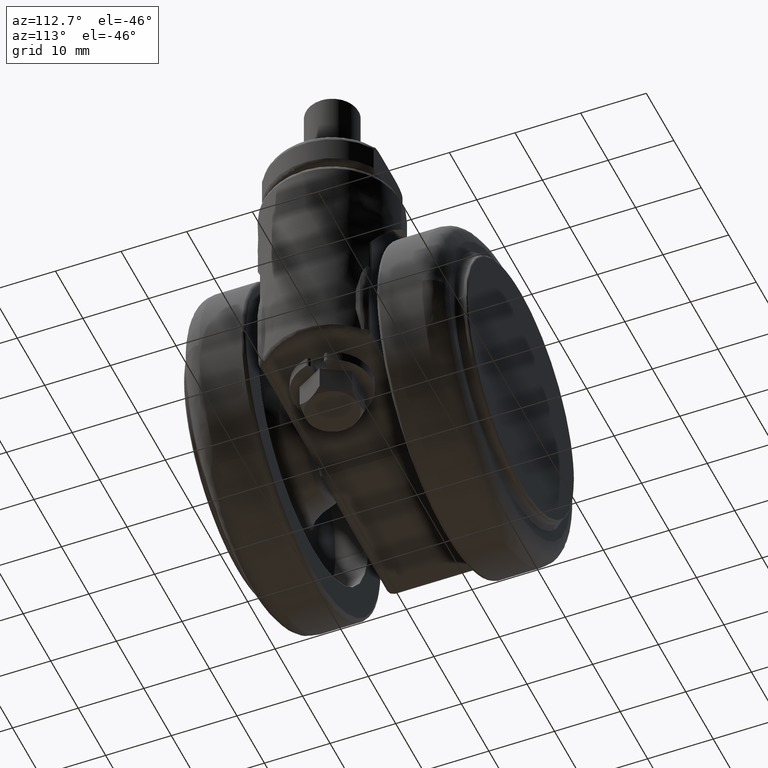
[diagram: clean part render]
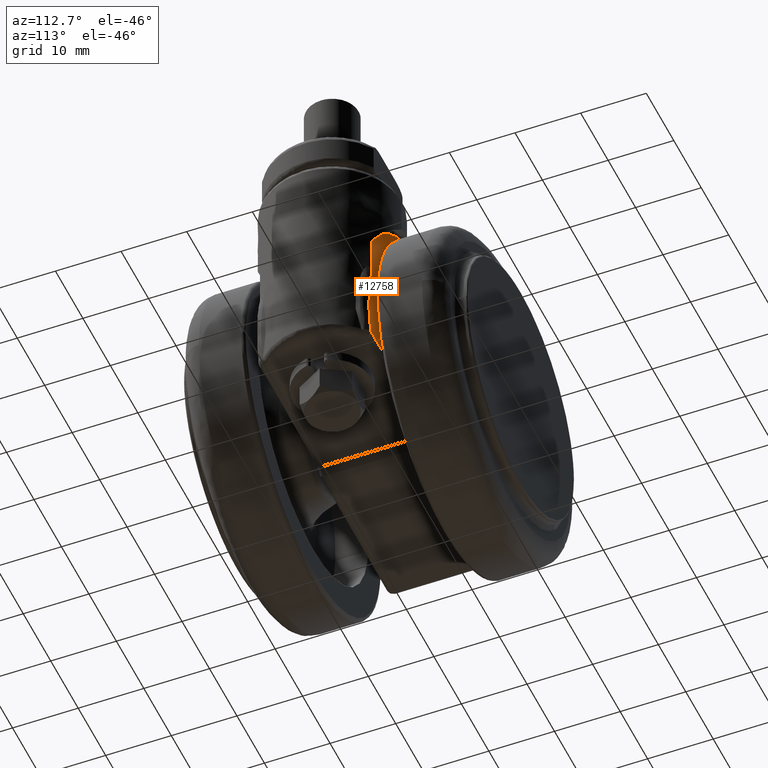
[diagram: same view with one face highlighted and labeled with its STEP entity id]
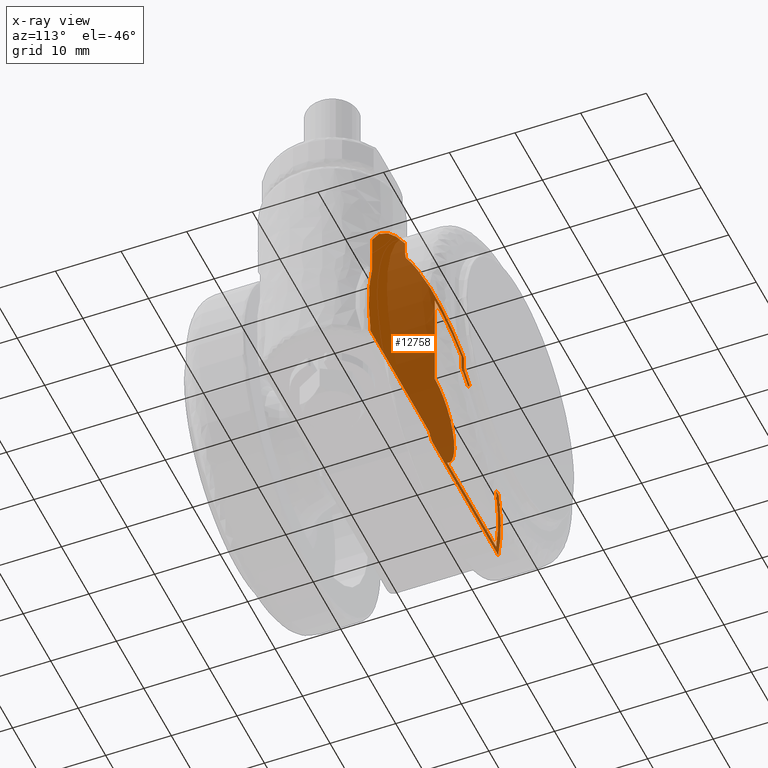
[diagram: x-ray of the same camera — body ghosted, the highlighted face saturated]
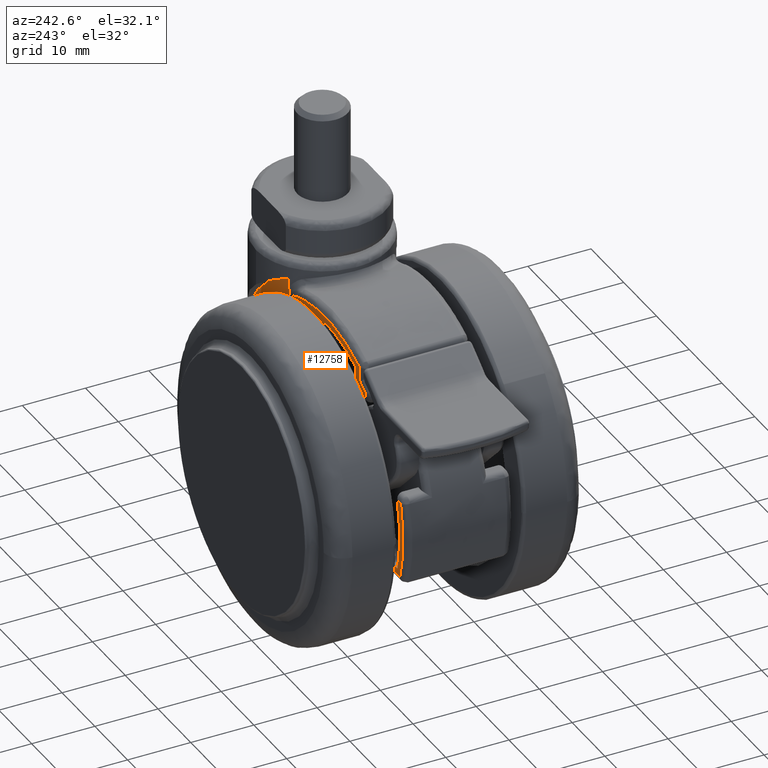
[diagram: same view with one face highlighted and labeled with its STEP entity id]
A machine part, auxiliary view. The second image highlights one B-rep face of the part: STEP entity #12758.
The next image is the same camera in x-ray: the body ghosted, the highlighted face saturated — about 77% of this face is hidden behind the body in this view.
A second angle (auxiliary view) of the same face is appended — the face is thin or edge-on in the first view.
In plain terms, the highlighted face is a freeform B-spline surface patch.
Its self-contained STEP definition (entity closure, byte-faithful):
#9864=CARTESIAN_POINT('',(10.835585997030799,8.500000000000000,24.183466999190799));
#9865=VERTEX_POINT('',#9864);
#9889=CARTESIAN_POINT('',(10.835585997031000,8.500000000000000,22.640273696058799));
#9890=VERTEX_POINT('',#9889);
#9891=CARTESIAN_POINT('',(10.835585997030799,8.500000000000000,24.183466999190799));
#9892=CARTESIAN_POINT('',(10.835585997031000,8.500000000000000,22.640273696058799));
#9893=QUASI_UNIFORM_CURVE('',1,(#9891,#9892),.UNSPECIFIED.,.F.,.U.);
#9894=EDGE_CURVE('',#9865,#9890,#9893,.T.);
#10335=CARTESIAN_POINT('',(22.830951894845299,8.500000000000000,7.399164518731801));
#10336=VERTEX_POINT('',#10335);
#10350=CARTESIAN_POINT('',(22.830951894845299,8.500000000000000,13.453536173633299));
#10351=VERTEX_POINT('',#10350);
#10352=CARTESIAN_POINT('',(22.830951894845299,8.500000000000000,13.453536173633299));
#10353=CARTESIAN_POINT('',(22.830951894845299,8.500000000000000,7.399164518731801));
#10354=QUASI_UNIFORM_CURVE('',1,(#10352,#10353),.UNSPECIFIED.,.F.,.U.);
#10355=EDGE_CURVE('',#10351,#10336,#10354,.T.);
#10389=CARTESIAN_POINT('',(-12.134737724335920,8.499999999999831,17.145157659645950));
#10390=VERTEX_POINT('',#10389);
#10426=CARTESIAN_POINT('',(-12.751275796193640,8.500000000000000,17.933771914017800));
#10427=VERTEX_POINT('',#10426);
#10440=CARTESIAN_POINT('',(-12.134737724335920,8.499999999999831,17.145157659645950));
#10441=CARTESIAN_POINT('',(-12.751275796193640,8.500000000000000,17.933771914017800));
#10442=QUASI_UNIFORM_CURVE('',1,(#10440,#10441),.UNSPECIFIED.,.F.,.U.);
#10443=EDGE_CURVE('',#10390,#10427,#10442,.T.);
#10735=CARTESIAN_POINT('',(-22.259335735551151,8.499999999999840,5.789816284824220));
#10736=VERTEX_POINT('',#10735);
#10768=CARTESIAN_POINT('',(-23.291157708194401,8.500000000000000,5.789816284824220));
#10769=VERTEX_POINT('',#10768);
#10770=CARTESIAN_POINT('',(-23.291157708194401,8.500000000000000,5.789816284824220));
#10771=CARTESIAN_POINT('',(-22.259335735551151,8.499999999999840,5.789816284824220));
#10772=QUASI_UNIFORM_CURVE('',1,(#10770,#10771),.UNSPECIFIED.,.F.,.U.);
#10773=EDGE_CURVE('',#10769,#10736,#10772,.T.);
#11324=CARTESIAN_POINT('',(10.519259301592101,8.500000000000000,21.571860924497649));
#11325=VERTEX_POINT('',#11324);
#11326=CARTESIAN_POINT('',(10.519259301592101,8.500000000000000,21.571860924497649));
#11327=CARTESIAN_POINT('',(10.526676076427140,8.500000000000000,21.580945536070129));
#11328=CARTESIAN_POINT('',(10.534228568331301,8.500000000000000,21.590400479527460));
#11329=CARTESIAN_POINT('',(10.548736710344169,8.500000000000000,21.609417072790979));
#11330=CARTESIAN_POINT('',(10.555801242226281,8.500000000000000,21.619032015800268));
#11331=CARTESIAN_POINT('',(10.576463655569469,8.500000000000002,21.648175720686279));
#11332=CARTESIAN_POINT('',(10.589531860306019,8.499999999999998,21.668002511289970));
#11333=CARTESIAN_POINT('',(10.626847344307871,8.500000000000000,21.728545824032430));
#11334=CARTESIAN_POINT('',(10.649217735745330,8.499999999999998,21.770318398786099));
#11335=CARTESIAN_POINT('',(10.689723438152360,8.499999999999998,21.856246465234982));
#11336=CARTESIAN_POINT('',(10.707928924108231,8.499999999999998,21.900636460711421));
#11337=CARTESIAN_POINT('',(10.740111076203689,8.500000000000000,21.990312869728200));
#11338=CARTESIAN_POINT('',(10.754086789711220,8.500000000000000,22.035513292402221));
#11339=CARTESIAN_POINT('',(10.790582250077589,8.500000000000000,22.172044638926231));
#11340=CARTESIAN_POINT('',(10.807722496924050,8.500000000000002,22.264296706357769));
#11341=CARTESIAN_POINT('',(10.830241689083870,8.499999999999998,22.450814754668681));
#11342=CARTESIAN_POINT('',(10.835585997031041,8.500000000000002,22.545086666580222));
#11343=CARTESIAN_POINT('',(10.835585997031041,8.500000000000000,22.640273696058799));
#11344=B_SPLINE_CURVE_WITH_KNOTS('',3,(#11326,#11327,#11328,#11329,#11330,#11331,#11332,#11333,#11334,#11335,#11336,#11337,#11338,#11339,#11340,#11341,#11342,#11343),.UNSPECIFIED.,.F.,.U.,(4,2,2,2,2,2,2,2,4),(0.0,0.031250000000005,0.062500000000010,0.125000000000013,0.250000000000011,0.375000000000009,0.500000000000006,0.750000000000003,1.0),.UNSPECIFIED.);
#11345=EDGE_CURVE('',#11325,#9890,#11344,.T.);
#11414=CARTESIAN_POINT('',(-10.690277602686541,8.500000000000000,21.487623525590251));
#11415=VERTEX_POINT('',#11414);
#11416=CARTESIAN_POINT('',(-10.690277602686530,8.500000000000000,21.487623525590230));
#11417=CARTESIAN_POINT('',(-0.106255290958149,8.500000000000000,26.753265700056645));
#11418=CARTESIAN_POINT('',(10.519259301592079,8.500000000000000,21.571860924497649));
#11426=(BOUNDED_CURVE()B_SPLINE_CURVE(2,(#11416,#11417,#11418),.UNSPECIFIED.,.F.,.U.)CURVE()GEOMETRIC_REPRESENTATION_ITEM()QUASI_UNIFORM_CURVE()RATIONAL_B_SPLINE_CURVE((1.0,0.897079667986461,1.0))REPRESENTATION_ITEM(''));
#11427=EDGE_CURVE('',#11415,#11325,#11426,.T.);
#11691=CARTESIAN_POINT('',(4.353505E-016,8.499999999999840,7.110047620127490));
#11692=VERTEX_POINT('',#11691);
#11693=CARTESIAN_POINT('',(0.0,8.499999999999831,23.0));
#11694=VERTEX_POINT('',#11693);
#11695=CARTESIAN_POINT('',(4.353505E-016,8.499999999999840,7.110047620127490));
#11696=CARTESIAN_POINT('',(0.0,8.499999999999831,23.0));
#11697=QUASI_UNIFORM_CURVE('',1,(#11695,#11696),.UNSPECIFIED.,.F.,.U.);
#11698=EDGE_CURVE('',#11692,#11694,#11697,.T.);
#11732=CARTESIAN_POINT('',(-4.505860313023500,8.499999999999840,-5.500000000000000));
#11733=VERTEX_POINT('',#11732);
#11734=CARTESIAN_POINT('',(4.353505E-016,8.499999999999840,7.110047620127490));
#11735=CARTESIAN_POINT('',(-0.568256836828598,8.499999999999831,7.110187021965817));
#11736=CARTESIAN_POINT('',(-1.500117969095546,8.499999999999867,6.997696038073711));
#11737=CARTESIAN_POINT('',(-2.843353278566176,8.499999999999822,6.557791755376616));
#11738=CARTESIAN_POINT('',(-3.949699042755978,8.499999999999863,5.962113769506096));
#11739=CARTESIAN_POINT('',(-5.084271567026111,8.499999999999847,5.042925701666264));
#11740=CARTESIAN_POINT('',(-6.024243312639314,8.499999999999803,3.889266176823686));
#11741=CARTESIAN_POINT('',(-6.640956030949153,8.499999999999872,2.638814116618749));
#11742=CARTESIAN_POINT('',(-7.013277502829940,8.500000000000251,1.371019189195270));
#11743=CARTESIAN_POINT('',(-7.147329456038018,8.499999999998973,0.190075622465552));
#11744=CARTESIAN_POINT('',(-7.068414145905487,8.500000000000910,-0.947072556773723));
#11745=CARTESIAN_POINT('',(-6.856778254183662,8.499999999999410,-1.972788735770291));
#11746=CARTESIAN_POINT('',(-6.437478601426298,8.500000000000046,-3.131268002728250));
#11747=CARTESIAN_POINT('',(-5.661694106272191,8.499999999999785,-4.400160854654572));
#11748=CARTESIAN_POINT('',(-4.910321060897844,8.499999999999682,-5.168750633852432));
#11749=CARTESIAN_POINT('',(-4.505860313023500,8.499999999999840,-5.500000000000000));
#11750=B_SPLINE_CURVE_WITH_KNOTS('',3,(#11734,#11735,#11736,#11737,#11738,#11739,#11740,#11741,#11742,#11743,#11744,#11745,#11746,#11747,#11748,#11749),.UNSPECIFIED.,.F.,.U.,(4,1,1,1,1,1,1,1,1,1,1,1,1,4),(0.000000129377010,1.704737102864749,2.795803704120575,4.227827910145154,5.455275622223113,7.160042304442333,8.660260640104804,9.614859348169482,11.115084190869680,12.206141111547341,13.024435596971641,14.251870719924330,15.888450634691999,17.456835162904529),.UNSPECIFIED.);
#11751=EDGE_CURVE('',#11692,#11733,#11750,.T.);
#11768=CARTESIAN_POINT('',(-22.332711434127301,8.499999999999840,-5.500000000000000));
#11769=VERTEX_POINT('',#11768);
#11770=CARTESIAN_POINT('',(-22.332711434127301,8.499999999999840,-5.500000000000000));
#11771=CARTESIAN_POINT('',(-4.505860313023500,8.499999999999840,-5.500000000000000));
#11772=QUASI_UNIFORM_CURVE('',1,(#11770,#11771),.UNSPECIFIED.,.F.,.U.);
#11773=EDGE_CURVE('',#11769,#11733,#11772,.T.);
#11799=CARTESIAN_POINT('',(-22.259335735551151,8.499999999999840,5.789816284824222));
#11800=CARTESIAN_POINT('',(-23.725201653969808,8.499999999999840,0.154196773561331));
#11801=CARTESIAN_POINT('',(-22.332711434127290,8.499999999999840,-5.499999999999996));
#11809=(BOUNDED_CURVE()B_SPLINE_CURVE(2,(#11799,#11800,#11801),.UNSPECIFIED.,.F.,.U.)CURVE()GEOMETRIC_REPRESENTATION_ITEM()QUASI_UNIFORM_CURVE()RATIONAL_B_SPLINE_CURVE((1.0,0.969412803447815,1.0))REPRESENTATION_ITEM(''));
#11810=EDGE_CURVE('',#10736,#11769,#11809,.T.);
#11884=CARTESIAN_POINT('',(-9.686705859990260,8.499999999999831,18.642884486217149));
#11885=VERTEX_POINT('',#11884);
#11886=CARTESIAN_POINT('',(-9.686705859990244,8.499999999999840,18.642884486217131));
#11887=CARTESIAN_POINT('',(-10.962011346025232,8.499999999999840,17.977853758528830));
#11888=CARTESIAN_POINT('',(-12.134737724335910,8.499999999999840,17.145157659645950));
#11896=(BOUNDED_CURVE()B_SPLINE_CURVE(2,(#11886,#11887,#11888),.UNSPECIFIED.,.F.,.U.)CURVE()GEOMETRIC_REPRESENTATION_ITEM()QUASI_UNIFORM_CURVE()RATIONAL_B_SPLINE_CURVE((1.0,0.997662788660386,1.0))REPRESENTATION_ITEM(''));
#11897=EDGE_CURVE('',#11885,#10390,#11896,.T.);
#11913=CARTESIAN_POINT('',(-9.689488193443269,8.499999999999831,20.859382027018999));
#11914=VERTEX_POINT('',#11913);
#11915=CARTESIAN_POINT('',(-9.689488193443269,8.499999999999831,20.859382027018999));
#11916=CARTESIAN_POINT('',(-9.686705859990260,8.499999999999831,18.642884486217149));
#11917=QUASI_UNIFORM_CURVE('',1,(#11915,#11916),.UNSPECIFIED.,.F.,.U.);
#11918=EDGE_CURVE('',#11914,#11885,#11917,.T.);
#11944=CARTESIAN_POINT('',(0.0,8.499999999999840,23.0));
#11945=CARTESIAN_POINT('',(-5.081198552043126,8.499999999999840,23.000000000000007));
#11946=CARTESIAN_POINT('',(-9.689488193443271,8.499999999999840,20.859382027019009));
#11954=(BOUNDED_CURVE()B_SPLINE_CURVE(2,(#11944,#11945,#11946),.UNSPECIFIED.,.F.,.U.)CURVE()GEOMETRIC_REPRESENTATION_ITEM()QUASI_UNIFORM_CURVE()RATIONAL_B_SPLINE_CURVE((1.0,0.976455235366336,1.0))REPRESENTATION_ITEM(''));
#11955=EDGE_CURVE('',#11694,#11914,#11954,.T.);
#12472=CARTESIAN_POINT('',(22.830951894845299,8.500000000000000,13.453536173633310));
#12473=CARTESIAN_POINT('',(18.543147993956090,8.500000000000000,20.730035328375156));
#12474=CARTESIAN_POINT('',(10.835585997030799,8.500000000000000,24.183466999190799));
#12482=(BOUNDED_CURVE()B_SPLINE_CURVE(2,(#12472,#12473,#12474),.UNSPECIFIED.,.F.,.U.)CURVE()GEOMETRIC_REPRESENTATION_ITEM()QUASI_UNIFORM_CURVE()RATIONAL_B_SPLINE_CURVE((1.0,0.952779707509432,1.0))REPRESENTATION_ITEM(''));
#12483=EDGE_CURVE('',#10351,#9865,#12482,.T.);
#12668=CARTESIAN_POINT('',(-26.397538250925411,8.500000000000000,25.716106116329868));
#12669=CARTESIAN_POINT('',(26.397310636720601,8.500000000000000,25.716106116329868));
#12670=CARTESIAN_POINT('',(-26.397538250925411,8.500000000000000,-8.032639940133787));
#12671=CARTESIAN_POINT('',(26.397310636720601,8.500000000000000,-8.032639940133787));
#12672=B_SPLINE_SURFACE_WITH_KNOTS('',1,1,((#12668,#12670),(#12669,#12671)),.UNSPECIFIED.,.F.,.F.,.U.,(2,2),(2,2),(0.0,52.794848887646012),(0.0,33.748746056463652),.UNSPECIFIED.);
#12673=ORIENTED_EDGE('',*,*,#10355,.T.);
#12674=CARTESIAN_POINT('',(23.361292772447349,8.500000000000000,-5.500000000000000));
#12675=VERTEX_POINT('',#12674);
#12676=CARTESIAN_POINT('',(22.830951894845299,8.500000000000000,7.399164518731801));
#12677=CARTESIAN_POINT('',(24.897165414359868,8.500000000000000,1.023630990711071));
#12678=CARTESIAN_POINT('',(23.361292772447339,8.500000000000000,-5.499999999999995));
#12686=(BOUNDED_CURVE()B_SPLINE_CURVE(2,(#12676,#12677,#12678),.UNSPECIFIED.,.F.,.U.)CURVE()GEOMETRIC_REPRESENTATION_ITEM()QUASI_UNIFORM_CURVE()RATIONAL_B_SPLINE_CURVE((1.0,0.963151451001386,1.0))REPRESENTATION_ITEM(''));
#12687=EDGE_CURVE('',#10336,#12675,#12686,.T.);
#12688=ORIENTED_EDGE('',*,*,#12687,.T.);
#12689=CARTESIAN_POINT('',(2.085786437627060,8.500000000000000,-5.500000000000000));
#12690=VERTEX_POINT('',#12689);
#12691=CARTESIAN_POINT('',(23.361292772447349,8.500000000000000,-5.500000000000000));
#12692=CARTESIAN_POINT('',(2.085786437627060,8.500000000000000,-5.500000000000000));
#12693=QUASI_UNIFORM_CURVE('',1,(#12691,#12692),.UNSPECIFIED.,.F.,.U.);
#12694=EDGE_CURVE('',#12675,#12690,#12693,.T.);
#12695=ORIENTED_EDGE('',*,*,#12694,.T.);
#12696=CARTESIAN_POINT('',(1.085786437626944,8.500000000000000,-6.500000000000000));
#12697=VERTEX_POINT('',#12696);
#12698=CARTESIAN_POINT('',(2.085786437627060,8.500000000000000,-5.500000000000000));
#12699=CARTESIAN_POINT('',(1.085786437626944,8.500000000000000,-6.500000000000000));
#12700=QUASI_UNIFORM_CURVE('',1,(#12698,#12699),.UNSPECIFIED.,.F.,.U.);
#12701=EDGE_CURVE('',#12690,#12697,#12700,.T.);
#12702=ORIENTED_EDGE('',*,*,#12701,.T.);
#12703=CARTESIAN_POINT('',(-23.103030104295851,8.500000000000000,-6.500000000000000));
#12704=VERTEX_POINT('',#12703);
#12705=CARTESIAN_POINT('',(1.085786437626944,8.500000000000000,-6.500000000000000));
#12706=CARTESIAN_POINT('',(-23.103030104295851,8.500000000000000,-6.500000000000000));
#12707=QUASI_UNIFORM_CURVE('',1,(#12705,#12706),.UNSPECIFIED.,.F.,.U.);
#12708=EDGE_CURVE('',#12697,#12704,#12707,.T.);
#12709=ORIENTED_EDGE('',*,*,#12708,.T.);
#12710=CARTESIAN_POINT('',(-23.103030104295840,8.500000000000000,-6.500000000000007));
#12711=CARTESIAN_POINT('',(-24.824879534535274,8.500000000000000,-0.380009350479049));
#12712=CARTESIAN_POINT('',(-23.291157708194419,8.500000000000000,5.789816284824232));
#12720=(BOUNDED_CURVE()B_SPLINE_CURVE(2,(#12710,#12711,#12712),.UNSPECIFIED.,.F.,.U.)CURVE()GEOMETRIC_REPRESENTATION_ITEM()QUASI_UNIFORM_CURVE()RATIONAL_B_SPLINE_CURVE((1.0,0.966658814553670,1.0))REPRESENTATION_ITEM(''));
#12721=EDGE_CURVE('',#12704,#10769,#12720,.T.);
#12722=ORIENTED_EDGE('',*,*,#12721,.T.);
#12723=ORIENTED_EDGE('',*,*,#10773,.T.);
#12724=ORIENTED_EDGE('',*,*,#11810,.T.);
#12725=ORIENTED_EDGE('',*,*,#11773,.T.);
#12726=ORIENTED_EDGE('',*,*,#11751,.F.);
#12727=ORIENTED_EDGE('',*,*,#11698,.T.);
#12728=ORIENTED_EDGE('',*,*,#11955,.T.);
#12729=ORIENTED_EDGE('',*,*,#11918,.T.);
#12730=ORIENTED_EDGE('',*,*,#11897,.T.);
#12731=ORIENTED_EDGE('',*,*,#10443,.T.);
#12732=CARTESIAN_POINT('',(-10.687455236031200,8.500000000000000,19.239234230594700));
#12733=VERTEX_POINT('',#12732);
#12734=CARTESIAN_POINT('',(-12.751275796193640,8.500000000000000,17.933771914017790));
#12735=CARTESIAN_POINT('',(-11.755648699066924,8.500000000000000,18.643863578250230));
#12736=CARTESIAN_POINT('',(-10.687455236031200,8.500000000000000,19.239234230594668));
#12744=(BOUNDED_CURVE()B_SPLINE_CURVE(2,(#12734,#12735,#12736),.UNSPECIFIED.,.F.,.U.)CURVE()GEOMETRIC_REPRESENTATION_ITEM()QUASI_UNIFORM_CURVE()RATIONAL_B_SPLINE_CURVE((1.0,0.998458629452945,1.0))REPRESENTATION_ITEM(''));
#12745=EDGE_CURVE('',#10427,#12733,#12744,.T.);
#12746=ORIENTED_EDGE('',*,*,#12745,.T.);
#12747=CARTESIAN_POINT('',(-10.687455236031200,8.500000000000000,19.239234230594700));
#12748=CARTESIAN_POINT('',(-10.690277602686541,8.500000000000000,21.487623525590251));
#12749=QUASI_UNIFORM_CURVE('',1,(#12747,#12748),.UNSPECIFIED.,.F.,.U.);
#12750=EDGE_CURVE('',#12733,#11415,#12749,.T.);
#12751=ORIENTED_EDGE('',*,*,#12750,.T.);
#12752=ORIENTED_EDGE('',*,*,#11427,.T.);
#12753=ORIENTED_EDGE('',*,*,#11345,.T.);
#12754=ORIENTED_EDGE('',*,*,#9894,.F.);
#12755=ORIENTED_EDGE('',*,*,#12483,.F.);
#12756=EDGE_LOOP('',(#12673,#12688,#12695,#12702,#12709,#12722,#12723,#12724,#12725,#12726,#12727,#12728,#12729,#12730,#12731,#12746,#12751,#12752,#12753,#12754,#12755));
#12757=FACE_OUTER_BOUND('',#12756,.T.);
#12758=ADVANCED_FACE('',(#12757),#12672,.T.);